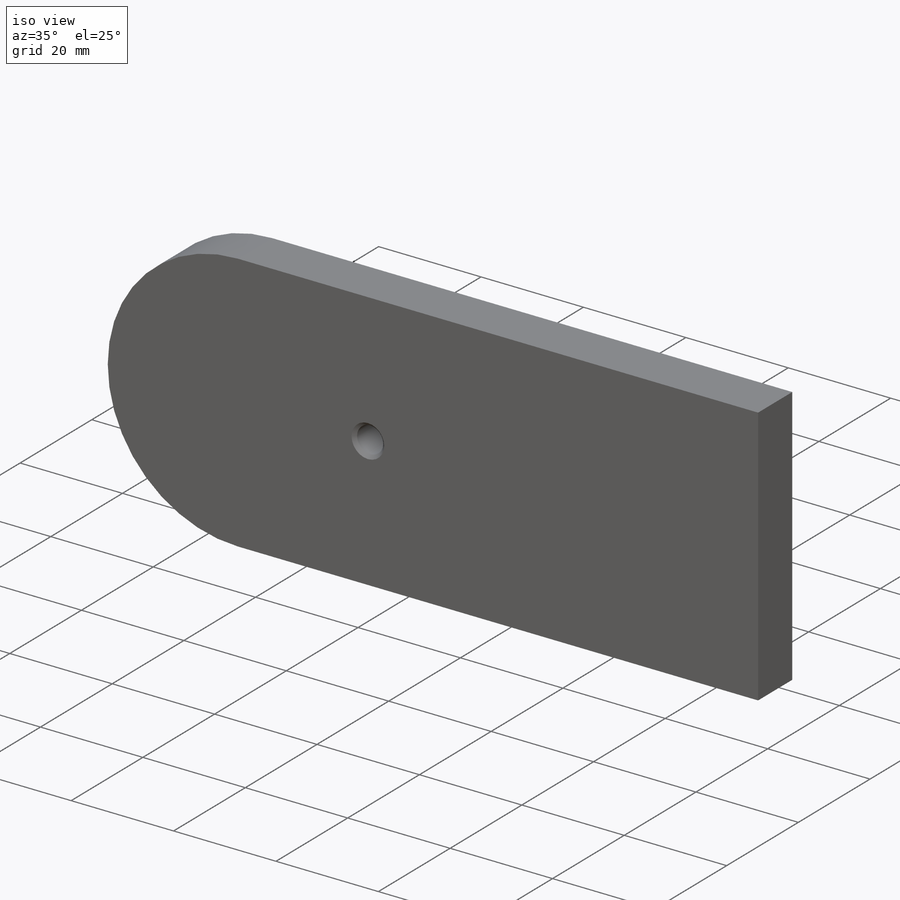
[diagram: iso view]
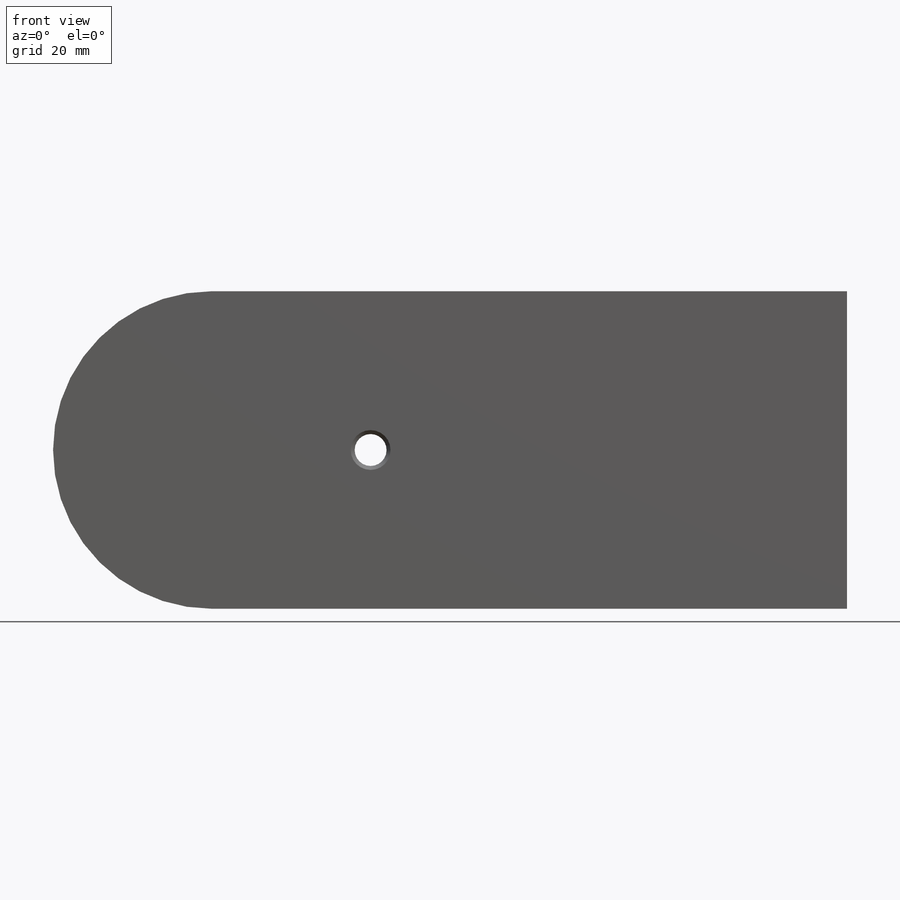
[diagram: front view]
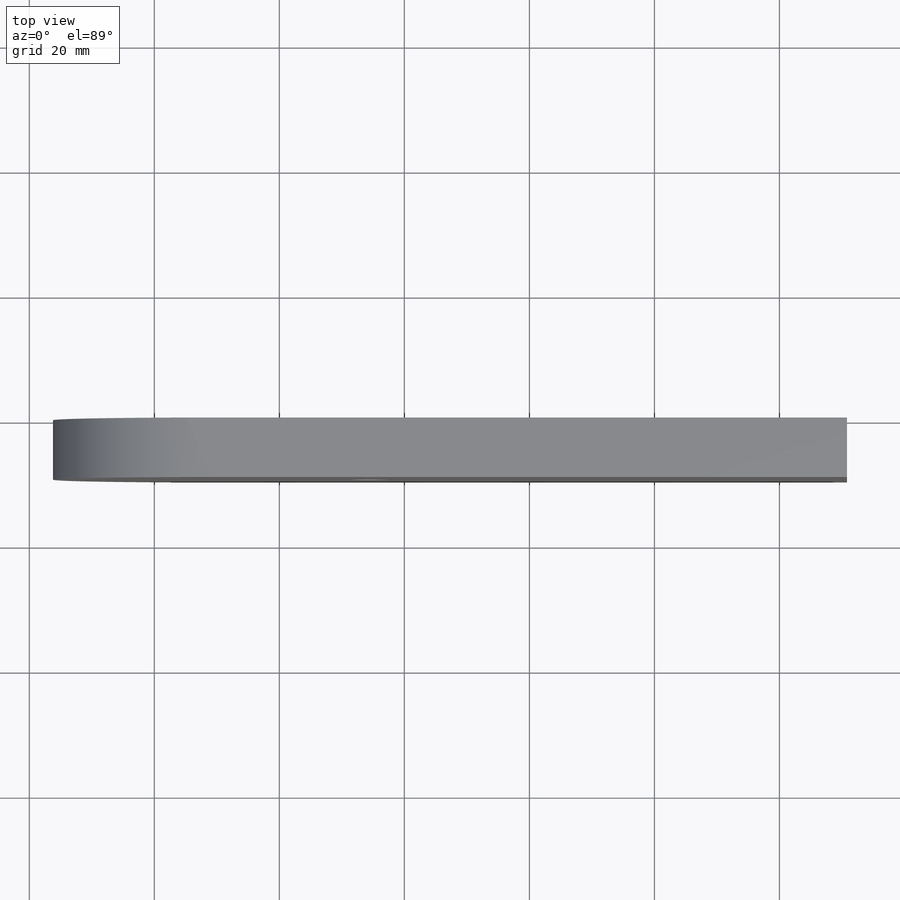
[diagram: top view]
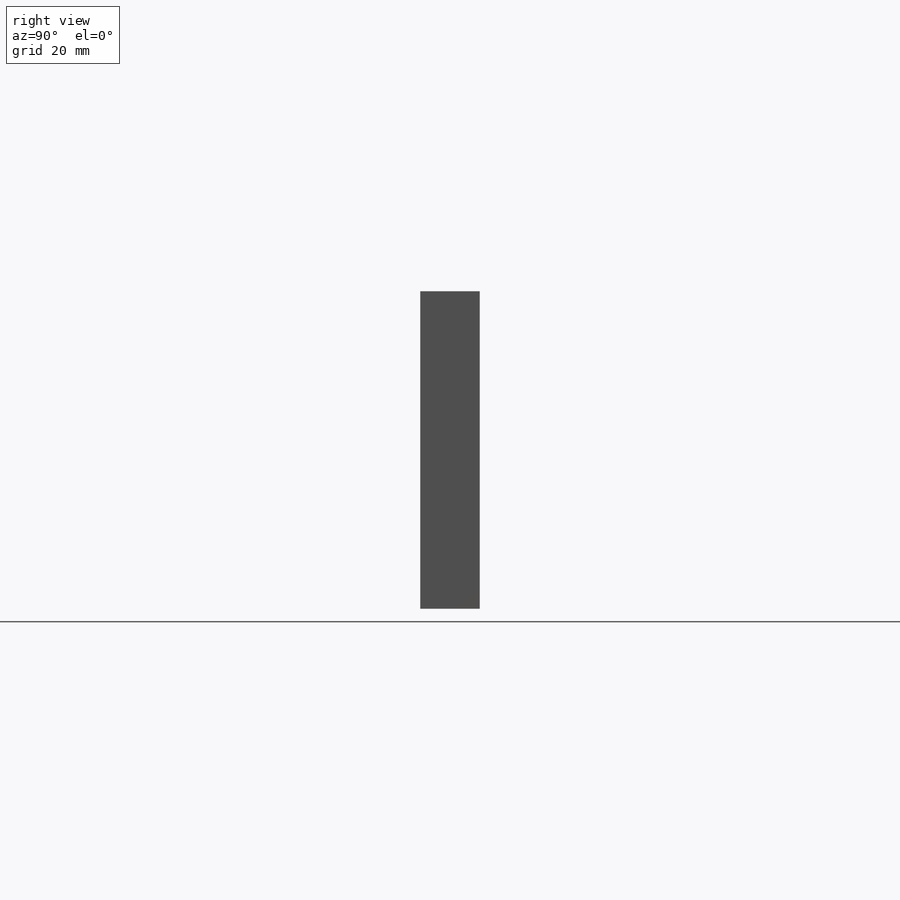
[diagram: right view]
SOLIDWORKS PART (.sldprt)
format: sldprt  version: not decoded by parser v0  size: 157,184 bytes
history: native  units: mm
features: sketch x5, cut_extrude x2, material x1, extrude x1, hole x1 (+12 scaffold rows collapsed)
feature tree (22):
  scaffold x12  (default folders/planes/origin — collapsed)
  material  "Material <not specified>"
  sketch  "Sketch1"
  extrude  "Boss-Extrude2"  Depth=9.525mm
  hole  "1/4-20 Tapped Hole1"  Diameter=5.1054mm Depth=9.525mm
  sketch  "Sketch3"  dims[D1=50.8mm D2=25.4mm]
  sketch  "Sketch2"  dims[hole-wizard template sketch: 46 standard entries collapsed; hole parameters kept: c15.Thread Major Dia.=5.1054mm c15.Thru Tap Drill Depth=9.525mm c15.Near C'Sink Dia.=6.3754mm c15.D4=~3.666174mm c15.Near C'Sink Angle=90.0deg c15.Far C'Sink Dia.=6.3754mm c15.D6=~9.919017mm c15.Far C'Sink Angle=90.0deg]
  sketch  "Sketch4"  dims[D1=~28.717074mm]
  cut_extrude  "Cut-Extrude1"  [1 undecoded]
  sketch  "Sketch5"  dims[D1=25.4mm]
  cut_extrude  "Cut-Extrude2"  [1 undecoded]
decode coverage: 6 of 9 modeling features carry decoded parameters
note: ~ marks probable driven/reference dimensions
note: 2 parameter values undecoded
note: suppression state not decoded; provenance and decode notes live in map.json
